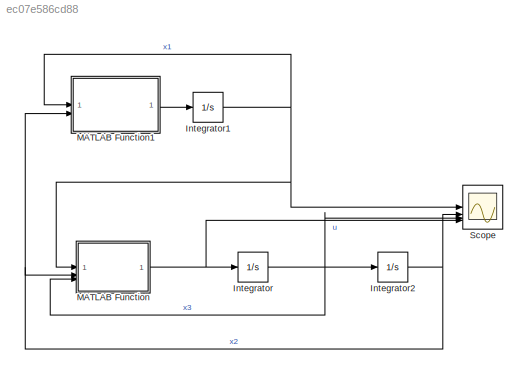
MODEL slx_ec07e586cd88
KIND model
CONFIG AbsTol = auto
CONFIG EnableMultiTasking = off
CONFIG FixedStep = Tmdl/n_steps
CONFIG MaxStep = auto
CONFIG MinStep = auto
CONFIG RelTol = 1e-3
CONFIG SampleTimeConstraint = Unconstrained
CONFIG SolverName = FixedStepAuto
CONFIG StartTime = 0.0
CONFIG StopTime = Tmdl
BLOCK [Integrator] Integrator
  InitialCondition = x3_initial
BLOCK [Integrator] Integrator1
  InitialCondition = x1_initial
BLOCK [Integrator] Integrator2
  InitialCondition = x2_initial
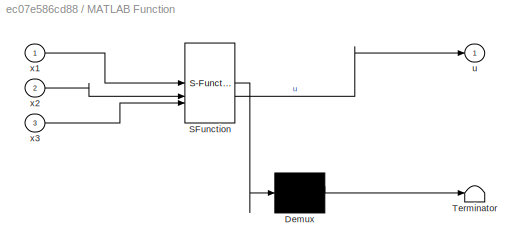
BLOCK [SubSystem] MATLAB Function
  ErrorFcn = Stateflow.Translate.translate
  PermitHierarchicalResolution = ExplicitOnly
  SFBlockType = MATLAB Function
  TreatAsAtomicUnit = on
BLOCK [Demux] MATLAB Function/ Demux 
  Outputs = 1
BLOCK [S-Function] MATLAB Function/ SFunction 
  EnableBusSupport = on
  FunctionName = sf_sfun
  PortCounts = [3 2]
  SFcnIsStateOwnerBlock = off
  SFunctionDeploymentMode = off
  Tag = Stateflow S-Function 2
BLOCK [Terminator] MATLAB Function/ Terminator 
BLOCK [Outport] MATLAB Function/u
BLOCK [Inport] MATLAB Function/x1
BLOCK [Inport] MATLAB Function/x2
  Port = 2
BLOCK [Inport] MATLAB Function/x3
  Port = 3
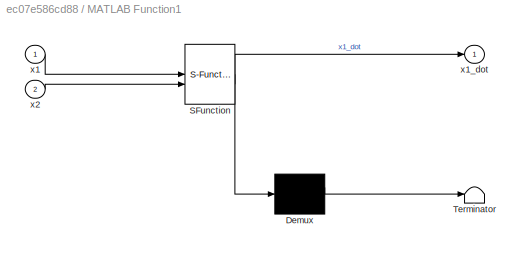
BLOCK [SubSystem] MATLAB Function1
  ErrorFcn = Stateflow.Translate.translate
  PermitHierarchicalResolution = ExplicitOnly
  SFBlockType = MATLAB Function
  TreatAsAtomicUnit = on
BLOCK [Demux] MATLAB Function1/ Demux 
  Outputs = 1
BLOCK [S-Function] MATLAB Function1/ SFunction 
  EnableBusSupport = on
  FunctionName = sf_sfun
  PortCounts = [2 2]
  SFcnIsStateOwnerBlock = off
  SFunctionDeploymentMode = off
  Tag = Stateflow S-Function 1
BLOCK [Terminator] MATLAB Function1/ Terminator 
BLOCK [Inport] MATLAB Function1/x1
BLOCK [Outport] MATLAB Function1/x1_dot
BLOCK [Inport] MATLAB Function1/x2
  Port = 2
BLOCK [Scope] Scope
  Floating = off
  NumInputPorts = 4
  ScopeSpecificationString = Simulink.scopes.TimeScopeBlockCfg('CurrentConfiguration', extmgr.ConfigurationSet(extmgr.Configuration('Core','General UI',true),extmgr.Configuration('Core','Source UI',true),extmgr.Configuration('Sources','WiredSimulink',true,'DataLoggingVariableName','out','DataLogging',true,'DataLoggingSaveFormat','StructureWithTime'),extmgr.Configuration('Visuals','Time Domain',true,'SerializedDisplays',{struc...<+1440ch>
NET Integrator1:1 -> MATLAB Function1:1, MATLAB Function:1, Scope:1
NET Integrator2:1 -> MATLAB Function1:2, MATLAB Function:2, Scope:2
NET Integrator:1 -> Integrator2:1, MATLAB Function:3, Scope:3
LINE MATLAB Function1:1 -> Integrator1:1
NET MATLAB Function:1 -> Integrator:1, Scope:4
note: NET lines group one-source signal fan-out (src -> all destinations, sorted); 1:1 wires keep LINE
CHART MATLAB Function states=1 transitions=1
  STATE_LABEL 'eML_blk_kernel()'
  STATE_LABEL 'SCRIPT:\nfunction u = control(x1,x2,x3)\nz2 = x2+1.5*x1^2-x1;\nz3 = x3 - (-z2 + (-2*x1+1)*(-x1-0.5*x1^3-z2));\nu = -z3 - (x2+1.5*x1^2-x1) + x3*(-1-(1-2*x1)) + (1-3*x1-2*(-x2-1.5*x1^2-0.5*x1^3)+(-2*x1+1)*(-3*x1-1.5*x1^2))*(-x2-1.5*x1^2-0.5*x1^3);\n'
CHART MATLAB Function1 states=1 transitions=1
  STATE_LABEL 'eML_blk_kernel()'
  STATE_LABEL 'SCRIPT:\nfunction x1_dot = state(x1,x2)\n\nx1_dot = -x2-1.5*x1^2-0.5*x1^3;\n'
CHART  states=0 transitions=0
CHART  states=0 transitions=0
